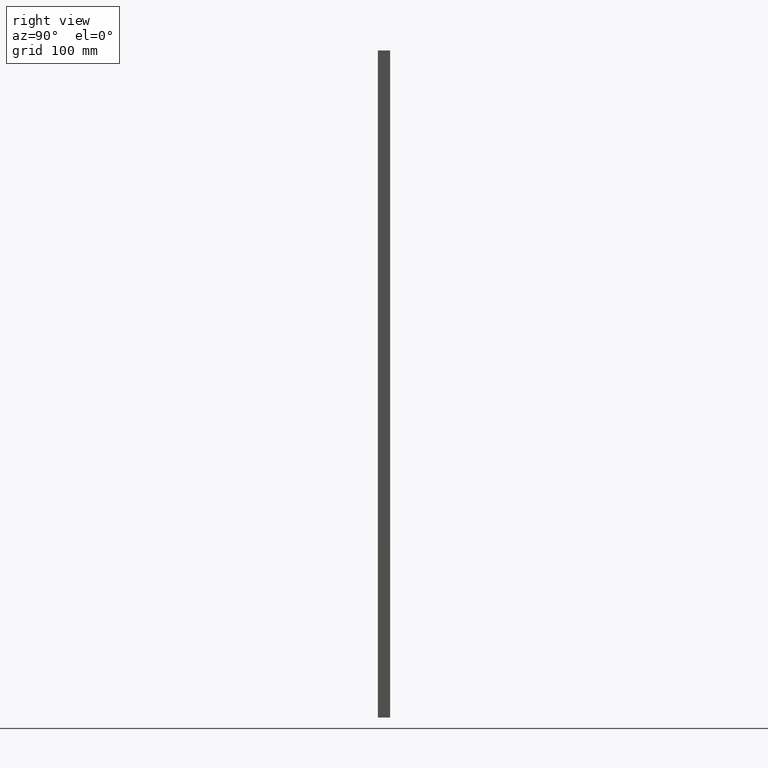
[diagram: clean part render]
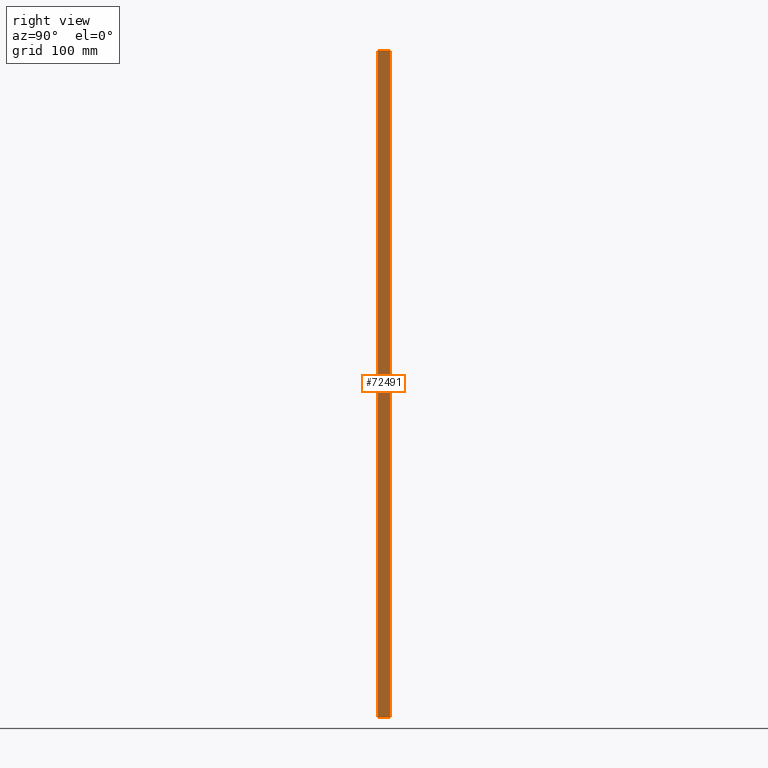
[diagram: same view with one face highlighted and labeled with its STEP entity id]
A machine part, right view. The second image highlights one B-rep face of the part: STEP entity #72491.
In plain terms, the highlighted planar face has unit normal (1, -0, -0).
Its self-contained STEP definition (entity closure, byte-faithful):
#5409 = LINE ( 'NONE', #19097, #25647 ) ;
#6155 = DIRECTION ( 'NONE',  ( -3.061616997868384100E-016, -1.000000000000000000, -3.061616997868383600E-016 ) ) ;
#6982 = DIRECTION ( 'NONE',  ( 1.018553233601060900E-016, 0.0000000000000000000, 1.000000000000000000 ) ) ;
#9376 = LINE ( 'NONE', #11554, #53768 ) ;
#9919 = CARTESIAN_POINT ( 'NONE',  ( 490.0000000000001100, 10.00000000000000000, -1090.000000000000000 ) ) ;
#11554 = CARTESIAN_POINT ( 'NONE',  ( 490.0000000000000600, 9.999999999999531000, -2.220446049250313100E-013 ) ) ;
#13556 = CARTESIAN_POINT ( 'NONE',  ( 489.9999999999998900, -10.00000000000000000, -1089.999999999999800 ) ) ;
#14245 = PLANE ( 'NONE',  #72945 ) ;
#14438 = EDGE_CURVE ( 'NONE', #35025, #25141, #9376, .T. ) ;
#19097 = CARTESIAN_POINT ( 'NONE',  ( 489.9999999999998900, -10.00000000000000000, -1089.999999999999800 ) ) ;
#21773 = EDGE_CURVE ( 'NONE', #30173, #25141, #5409, .T. ) ;
#25141 = VERTEX_POINT ( 'NONE', #53927 ) ;
#25647 = VECTOR ( 'NONE', #6982, 1000.000000000000000 ) ;
#27411 = DIRECTION ( 'NONE',  ( 3.061616997868383600E-016, 1.000000000000000000, 0.0000000000000000000 ) ) ;
#27627 = EDGE_CURVE ( 'NONE', #67097, #35025, #56467, .T. ) ;
#29992 = DIRECTION ( 'NONE',  ( 3.061616997868383100E-016, 1.000000000000000000, -3.061616997868383100E-016 ) ) ;
#30173 = VERTEX_POINT ( 'NONE', #13556 ) ;
#35025 = VERTEX_POINT ( 'NONE', #47100 ) ;
#37065 = EDGE_LOOP ( 'NONE', ( #46065, #48127, #57453, #69594 ) ) ;
#39496 = VECTOR ( 'NONE', #29992, 1000.000000000000000 ) ;
#42331 = LINE ( 'NONE', #66401, #39496 ) ;
#44276 = FACE_OUTER_BOUND ( 'NONE', #37065, .T. ) ;
#46065 = ORIENTED_EDGE ( 'NONE', *, *, #27627, .T. ) ;
#47100 = CARTESIAN_POINT ( 'NONE',  ( 490.0000000000002800, 10.00000000000000200, 3.330669073875469600E-013 ) ) ;
#48127 = ORIENTED_EDGE ( 'NONE', *, *, #14438, .T. ) ;
#48925 = EDGE_CURVE ( 'NONE', #30173, #67097, #42331, .T. ) ;
#50892 = CARTESIAN_POINT ( 'NONE',  ( 489.9999999999999400, 9.999999999999865000, -1090.000000000000000 ) ) ;
#53768 = VECTOR ( 'NONE', #6155, 1000.000000000000000 ) ;
#53927 = CARTESIAN_POINT ( 'NONE',  ( 489.9999999999999400, -10.00000000000000000, -2.220446049250313100E-013 ) ) ;
#54937 = DIRECTION ( 'NONE',  ( 1.018553233601060900E-016, 0.0000000000000000000, 1.000000000000000000 ) ) ;
#56467 = LINE ( 'NONE', #74093, #79605 ) ;
#57453 = ORIENTED_EDGE ( 'NONE', *, *, #21773, .F. ) ;
#66401 = CARTESIAN_POINT ( 'NONE',  ( 489.9999999999999400, 9.999999999999865000, -1090.000000000000000 ) ) ;
#67097 = VERTEX_POINT ( 'NONE', #9919 ) ;
#69594 = ORIENTED_EDGE ( 'NONE', *, *, #48925, .T. ) ;
#69771 = DIRECTION ( 'NONE',  ( 1.000000000000000000, -3.061616997868383600E-016, -1.018553233601060900E-016 ) ) ;
#72491 = ADVANCED_FACE ( 'NONE', ( #44276 ), #14245, .T. ) ;
#72945 = AXIS2_PLACEMENT_3D ( 'NONE', #50892, #69771, #27411 ) ;
#74093 = CARTESIAN_POINT ( 'NONE',  ( 490.0000000000001100, 10.00000000000000000, -1090.000000000000000 ) ) ;
#79605 = VECTOR ( 'NONE', #54937, 1000.000000000000000 ) ;